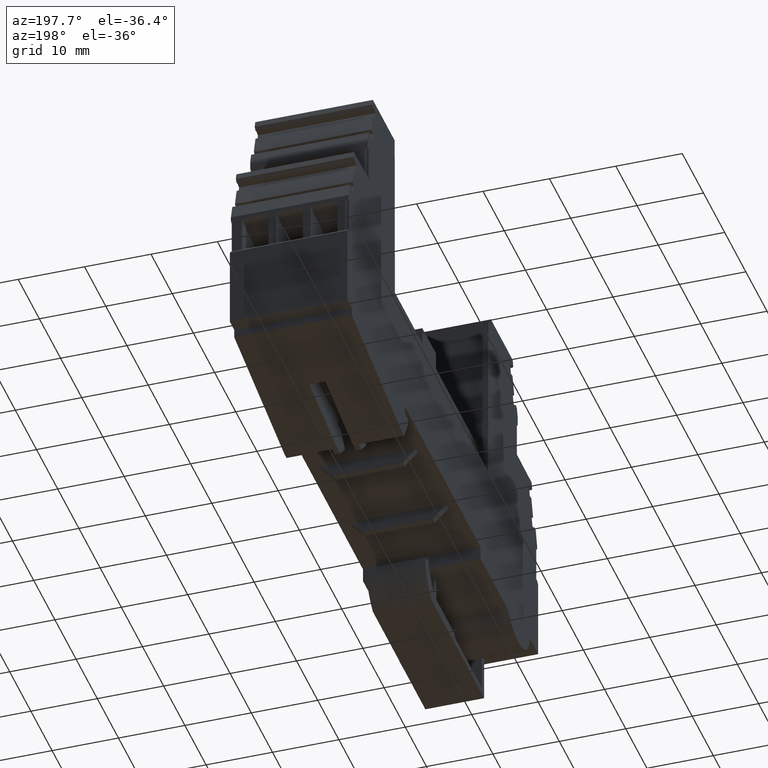
[diagram: clean part render]
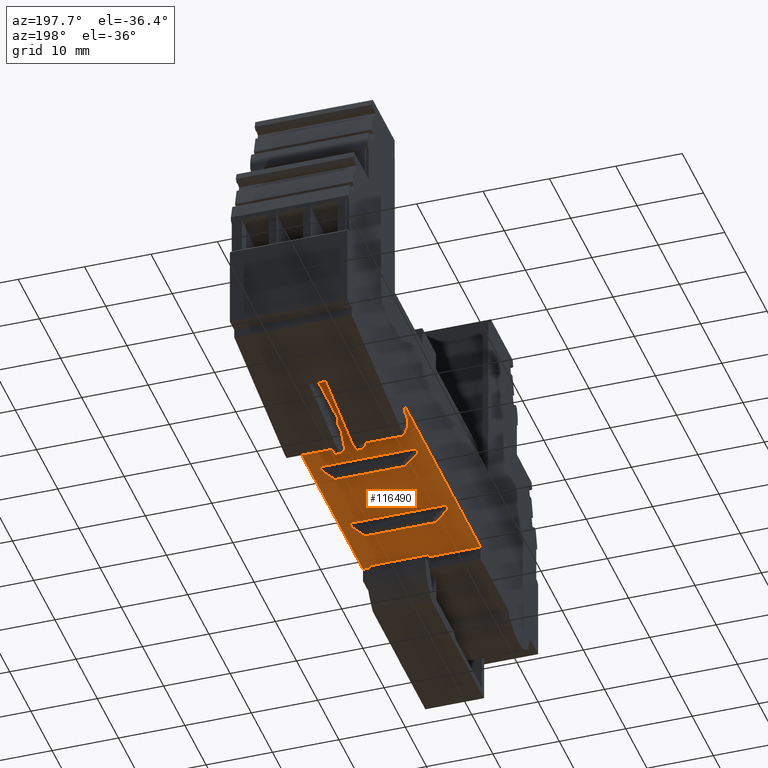
[diagram: same view with one face highlighted and labeled with its STEP entity id]
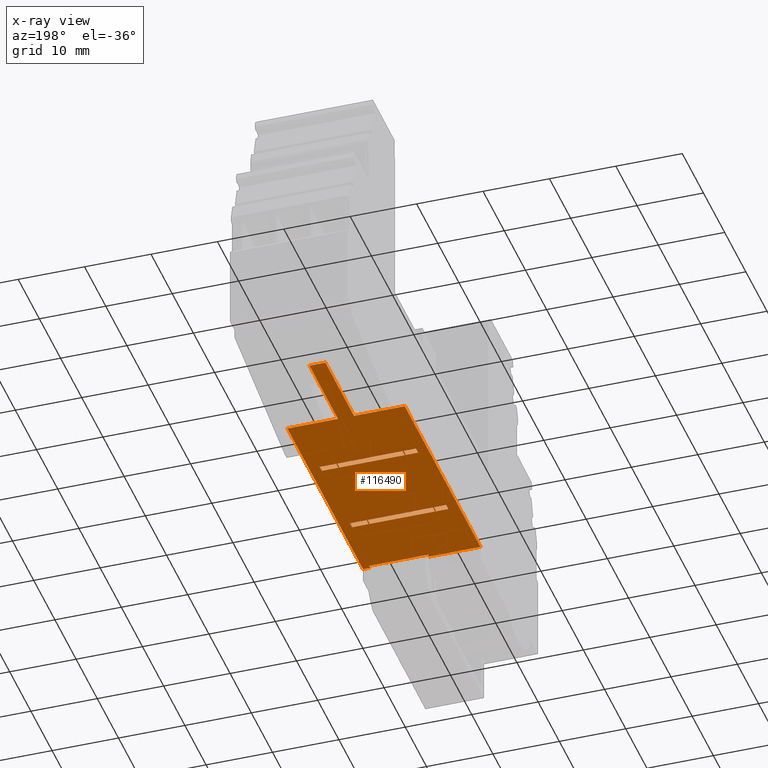
[diagram: x-ray of the same camera — body ghosted, the highlighted face saturated]
A machine part, auxiliary view. The second image highlights one B-rep face of the part: STEP entity #116490.
The next image is the same camera in x-ray: the body ghosted, the highlighted face saturated — about 0% of this face is hidden behind the body in this view.
In plain terms, the highlighted planar face has unit normal (-0, 0, 1).
Its self-contained STEP definition (entity closure, byte-faithful):
#96700=CARTESIAN_POINT('',(100.74135129256,17.356274052443,-38.95));
#96710=VERTEX_POINT('',#96700);
#96740=CARTESIAN_POINT('',(8.89999997864408,17.356274052443,-38.95));
#96750=DIRECTION('',(-1.,1.20996962449382E-16,8.99708997865547E-21));
#96760=VECTOR('',#96750,1.);
#96770=LINE('',#96740,#96760);
#96780=CARTESIAN_POINT('',(87.2413512925595,17.356274052443,-38.95));
#96790=VERTEX_POINT('',#96780);
#96800=EDGE_CURVE('',#96710,#96790,#96770,.T.);
#99300=CARTESIAN_POINT('',(100.74135129256,17.356274052443,-41.35));
#99310=VERTEX_POINT('',#99300);
#99340=CARTESIAN_POINT('',(100.741351292559,17.356274052443,
2.25000000009247));
#99350=DIRECTION('',(8.99708997865547E-21,7.51478429024852E-19,1.));
#99360=VECTOR('',#99350,1.);
#99370=LINE('',#99340,#99360);
#99380=EDGE_CURVE('',#99310,#96710,#99370,.T.);
#101680=CARTESIAN_POINT('',(87.2413512925595,17.356274052443,-31.3));
#101690=VERTEX_POINT('',#101680);
#101720=CARTESIAN_POINT('',(8.89999997864408,17.356274052443,-31.3));
#101730=DIRECTION('',(-1.,1.20996962449382E-16,0.));
#101740=VECTOR('',#101730,1.);
#101750=LINE('',#101720,#101740);
#101760=CARTESIAN_POINT('',(51.5413512925586,17.3562740524429,-31.3));
#101770=VERTEX_POINT('',#101760);
#101780=EDGE_CURVE('',#101690,#101770,#101750,.T.);
#110840=CARTESIAN_POINT('',(51.5413512925586,17.356274052443,-32.4));
#110850=VERTEX_POINT('',#110840);
#110880=CARTESIAN_POINT('',(8.89999997864408,17.356274052443,-32.4));
#110890=DIRECTION('',(1.,-1.20996962449382E-16,1.2245793180029E-16));
#110900=VECTOR('',#110890,1.);
#110910=LINE('',#110880,#110900);
#110920=CARTESIAN_POINT('',(52.0413512925594,17.356274052443,-32.4));
#110930=VERTEX_POINT('',#110920);
#110940=EDGE_CURVE('',#110850,#110930,#110910,.T.);
#111840=CARTESIAN_POINT('',(52.0413512925594,17.356274052443,-41.25));
#111850=VERTEX_POINT('',#111840);
#111880=CARTESIAN_POINT('',(138.682702606475,17.356274052443,-41.25));
#111890=DIRECTION('',(-1.,1.20996962449382E-16,8.99708997865547E-21));
#111900=VECTOR('',#111890,1.);
#111910=LINE('',#111880,#111900);
#111920=CARTESIAN_POINT('',(51.5413512925586,17.356274052443,-41.25));
#111930=VERTEX_POINT('',#111920);
#111940=EDGE_CURVE('',#111850,#111930,#111910,.T.);
#115090=CARTESIAN_POINT('',(52.0413512925594,17.356274052443,
2.25000000009247));
#115100=DIRECTION('',(-1.22464679914735E-16,-7.51478429024816E-19,-1.));
#115110=VECTOR('',#115100,1.);
#115120=LINE('',#115090,#115110);
#115130=EDGE_CURVE('',#110930,#111850,#115120,.T.);
#115260=CARTESIAN_POINT('',(51.7413512925594,17.356274052443,-49.));
#115270=DIRECTION('',(1.20996962449382E-16,1.,-7.51478429024852E-19));
#115280=DIRECTION('',(8.99708997865547E-21,7.51478429024852E-19,1.));
#115290=AXIS2_PLACEMENT_3D('',#115260,#115270,#115280);
#115300=PLANE('',#115290);
#115310=CARTESIAN_POINT('',(8.89999997864408,17.356274052443,
-32.8999999999999));
#115320=DIRECTION('',(-1.,1.20996962449382E-16,8.99708997868013E-21));
#115330=VECTOR('',#115320,1.);
#115340=LINE('',#115310,#115330);
#115350=CARTESIAN_POINT('',(62.6913512925595,17.3562740524429,
-32.8999999999999));
#115360=VERTEX_POINT('',#115350);
#115370=CARTESIAN_POINT('',(61.6913512925595,17.3562740524429,
-32.8999999999999));
#115380=VERTEX_POINT('',#115370);
#115390=EDGE_CURVE('',#115360,#115380,#115340,.T.);
#115400=ORIENTED_EDGE('',*,*,#115390,.F.);
#115410=CARTESIAN_POINT('',(61.6913512925595,17.356274052443,
2.25000000009247));
#115420=DIRECTION('',(8.99708997865547E-21,7.51478429024852E-19,1.));
#115430=VECTOR('',#115420,1.);
#115440=LINE('',#115410,#115430);
#115450=CARTESIAN_POINT('',(61.6913512925595,17.3562740524429,
-47.4000000000001));
#115460=VERTEX_POINT('',#115450);
#115470=EDGE_CURVE('',#115460,#115380,#115440,.T.);
#115480=ORIENTED_EDGE('',*,*,#115470,.T.);
#115490=CARTESIAN_POINT('',(8.89999997864408,17.356274052443,
-47.4000000000001));
#115500=DIRECTION('',(1.,-1.20996962449382E-16,-8.99708997863082E-21));
#115510=VECTOR('',#115500,1.);
#115520=LINE('',#115490,#115510);
#115530=CARTESIAN_POINT('',(62.6913512925595,17.3562740524429,-47.4));
#115540=VERTEX_POINT('',#115530);
#115550=EDGE_CURVE('',#115460,#115540,#115520,.T.);
#115560=ORIENTED_EDGE('',*,*,#115550,.F.);
#115570=CARTESIAN_POINT('',(62.6913512925595,17.356274052443,
2.25000000009247));
#115580=DIRECTION('',(-8.99708997865547E-21,-7.51478429024852E-19,-1.));
#115590=VECTOR('',#115580,1.);
#115600=LINE('',#115570,#115590);
#115610=EDGE_CURVE('',#115360,#115540,#115600,.T.);
#115620=ORIENTED_EDGE('',*,*,#115610,.T.);
#115630=EDGE_LOOP('',(#115620,#115560,#115480,#115400));
#115640=FACE_BOUND('',#115630,.T.);
#115650=CARTESIAN_POINT('',(8.89999997864408,17.356274052443,
-32.8999999999999));
#115660=DIRECTION('',(-1.,1.20996962449382E-16,8.99708997868013E-21));
#115670=VECTOR('',#115660,1.);
#115680=LINE('',#115650,#115670);
#115690=CARTESIAN_POINT('',(76.9913512925595,17.3562740524429,
-32.8999999999999));
#115700=VERTEX_POINT('',#115690);
#115710=CARTESIAN_POINT('',(75.9913512925595,17.3562740524429,
-32.8999999999999));
#115720=VERTEX_POINT('',#115710);
#115730=EDGE_CURVE('',#115700,#115720,#115680,.T.);
#115740=ORIENTED_EDGE('',*,*,#115730,.F.);
#115750=CARTESIAN_POINT('',(75.9913512925595,17.356274052443,
2.25000000009247));
#115760=DIRECTION('',(8.99708997865547E-21,7.51478429024852E-19,1.));
#115770=VECTOR('',#115760,1.);
#115780=LINE('',#115750,#115770);
#115790=CARTESIAN_POINT('',(75.9913512925595,17.3562740524429,
-47.4000000000001));
#115800=VERTEX_POINT('',#115790);
#115810=EDGE_CURVE('',#115800,#115720,#115780,.T.);
#115820=ORIENTED_EDGE('',*,*,#115810,.T.);
#115830=CARTESIAN_POINT('',(8.89999997864408,17.356274052443,
-47.4000000000001));
#115840=DIRECTION('',(1.,-1.20996962449382E-16,-8.99708997863082E-21));
#115850=VECTOR('',#115840,1.);
#115860=LINE('',#115830,#115850);
#115870=CARTESIAN_POINT('',(76.9913512925595,17.3562740524429,-47.4));
#115880=VERTEX_POINT('',#115870);
#115890=EDGE_CURVE('',#115800,#115880,#115860,.T.);
#115900=ORIENTED_EDGE('',*,*,#115890,.F.);
#115910=CARTESIAN_POINT('',(76.9913512925595,17.356274052443,
2.25000000009247));
#115920=DIRECTION('',(-8.99708997865547E-21,-7.51478429024852E-19,-1.));
#115930=VECTOR('',#115920,1.);
#115940=LINE('',#115910,#115930);
#115950=EDGE_CURVE('',#115700,#115880,#115940,.T.);
#115960=ORIENTED_EDGE('',*,*,#115950,.T.);
#115970=EDGE_LOOP('',(#115960,#115900,#115820,#115740));
#115980=FACE_BOUND('',#115970,.T.);
#115990=ORIENTED_EDGE('',*,*,#96800,.T.);
#116000=ORIENTED_EDGE('',*,*,#99380,.T.);
#116010=CARTESIAN_POINT('',(8.89999997864408,17.356274052443,-41.35));
#116020=DIRECTION('',(1.,-1.20996962449382E-16,-8.99708997865547E-21));
#116030=VECTOR('',#116020,1.);
#116040=LINE('',#116010,#116030);
#116050=CARTESIAN_POINT('',(87.2413512925595,17.356274052443,-41.35));
#116060=VERTEX_POINT('',#116050);
#116070=EDGE_CURVE('',#116060,#99310,#116040,.T.);
#116080=ORIENTED_EDGE('',*,*,#116070,.T.);
#116090=CARTESIAN_POINT('',(87.2413512925595,17.356274052443,
2.25000000009247));
#116100=DIRECTION('',(-1.22464679914735E-16,-7.51478429024816E-19,-1.));
#116110=VECTOR('',#116100,1.);
#116120=LINE('',#116090,#116110);
#116130=CARTESIAN_POINT('',(87.2413512925595,17.356274052443,-49.));
#116140=VERTEX_POINT('',#116130);
#116150=EDGE_CURVE('',#116060,#116140,#116120,.T.);
#116160=ORIENTED_EDGE('',*,*,#116150,.F.);
#116170=CARTESIAN_POINT('',(8.89999997864408,17.356274052443,-49.));
#116180=DIRECTION('',(1.,-1.20996962449382E-16,-8.99708997865547E-21));
#116190=VECTOR('',#116180,1.);
#116200=LINE('',#116170,#116190);
#116210=CARTESIAN_POINT('',(51.5413512925586,17.356274052443,-49.));
#116220=VERTEX_POINT('',#116210);
#116230=EDGE_CURVE('',#116220,#116140,#116200,.T.);
#116240=ORIENTED_EDGE('',*,*,#116230,.T.);
#116250=CARTESIAN_POINT('',(51.5413512925586,17.356274052443,
-82.5500000000924));
#116260=DIRECTION('',(8.99708997865547E-21,-2.60974393670053E-32,1.));
#116270=VECTOR('',#116260,1.);
#116280=LINE('',#116250,#116270);
#116290=EDGE_CURVE('',#116220,#111930,#116280,.T.);
#116300=ORIENTED_EDGE('',*,*,#116290,.F.);
#116310=ORIENTED_EDGE('',*,*,#111940,.T.);
#116320=ORIENTED_EDGE('',*,*,#115130,.T.);
#116330=ORIENTED_EDGE('',*,*,#110940,.T.);
#116340=CARTESIAN_POINT('',(51.5413512925586,17.356274052443,
2.25000000009247));
#116350=DIRECTION('',(0.,-7.51478429024852E-19,-1.));
#116360=VECTOR('',#116350,1.);
#116370=LINE('',#116340,#116360);
#116380=EDGE_CURVE('',#101770,#110850,#116370,.T.);
#116390=ORIENTED_EDGE('',*,*,#116380,.T.);
#116400=ORIENTED_EDGE('',*,*,#101780,.T.);
#116410=CARTESIAN_POINT('',(87.2413512925595,17.356274052443,
2.25000000009247));
#116420=DIRECTION('',(-1.22464679914735E-16,-7.51478429024816E-19,-1.));
#116430=VECTOR('',#116420,1.);
#116440=LINE('',#116410,#116430);
#116450=EDGE_CURVE('',#101690,#96790,#116440,.T.);
#116460=ORIENTED_EDGE('',*,*,#116450,.F.);
#116470=EDGE_LOOP('',(#116460,#116400,#116390,#116330,#116320,#116310,
#116300,#116240,#116160,#116080,#116000,#115990));
#116480=FACE_OUTER_BOUND('',#116470,.T.);
#116490=ADVANCED_FACE('',(#115640,#115980,#116480),#115300,.F.);